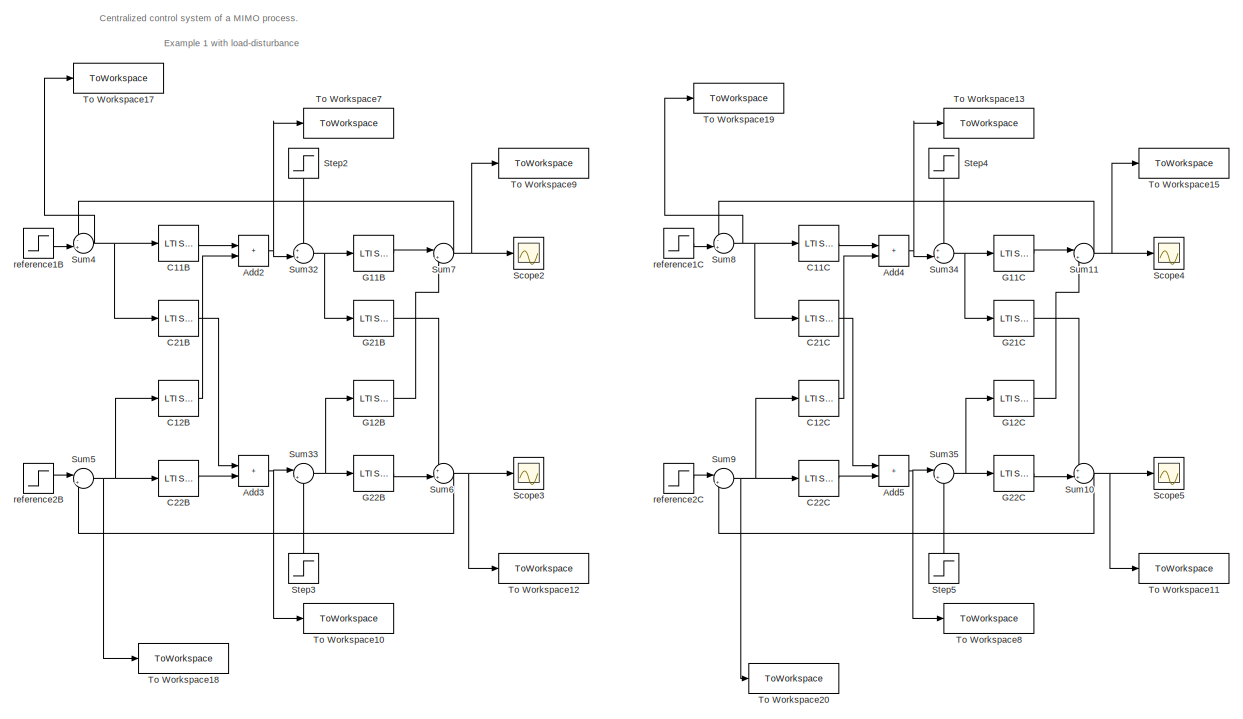
[diagram: root canvas - part 1/2, center side, full height]
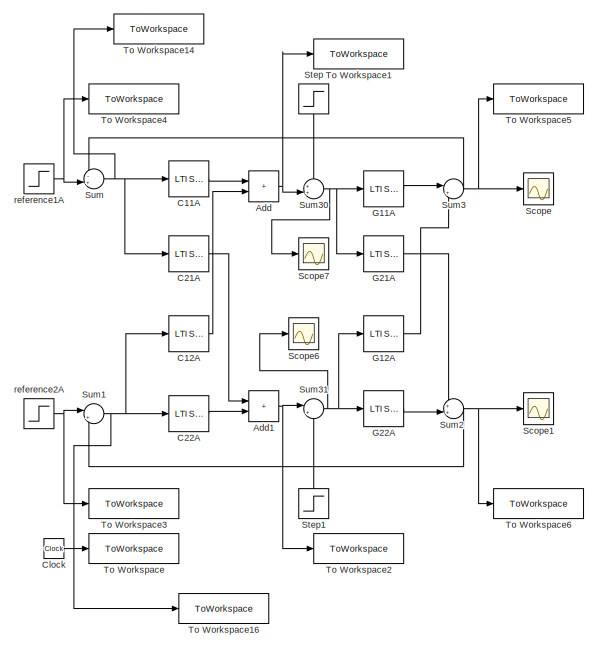
[diagram: root canvas - part 2/2, left side, full height]
MODEL slx_c72b5e23d8e6
KIND model
CONFIG AbsTol = auto
CONFIG EnableMultiTasking = off
CONFIG FixedStep = auto
CONFIG MaxStep = auto
CONFIG MinStep = auto
CONFIG RelTol = 1e-3
CONFIG SampleTimeConstraint = Unconstrained
CONFIG SolverName = VariableStepAuto
CONFIG StartTime = 0.0
CONFIG StopTime = Tsim
BLOCK [Sum] Add
  IconShape = rectangular
BLOCK [Sum] Add1
  IconShape = rectangular
BLOCK [Sum] Add2
  IconShape = rectangular
BLOCK [Sum] Add3
  IconShape = rectangular
BLOCK [Sum] Add4
  IconShape = rectangular
BLOCK [Sum] Add5
  IconShape = rectangular
BLOCK [Reference] C11A  REF=cstblocks/LTI System
  SourceBlock = cstblocks/LTI System
  SourceType = LTI Block
BLOCK [Reference] C11B  REF=cstblocks/LTI System
  SourceBlock = cstblocks/LTI System
  SourceType = LTI Block
BLOCK [Reference] C11C  REF=cstblocks/LTI System
  SourceBlock = cstblocks/LTI System
  SourceType = LTI Block
BLOCK [Reference] C12A  REF=cstblocks/LTI System
  SourceBlock = cstblocks/LTI System
  SourceType = LTI Block
BLOCK [Reference] C12B  REF=cstblocks/LTI System
  SourceBlock = cstblocks/LTI System
  SourceType = LTI Block
BLOCK [Reference] C12C  REF=cstblocks/LTI System
  SourceBlock = cstblocks/LTI System
  SourceType = LTI Block
BLOCK [Reference] C21A  REF=cstblocks/LTI System
  SourceBlock = cstblocks/LTI System
  SourceType = LTI Block
BLOCK [Reference] C21B  REF=cstblocks/LTI System
  SourceBlock = cstblocks/LTI System
  SourceType = LTI Block
BLOCK [Reference] C21C  REF=cstblocks/LTI System
  SourceBlock = cstblocks/LTI System
  SourceType = LTI Block
BLOCK [Reference] C22A  REF=cstblocks/LTI System
  SourceBlock = cstblocks/LTI System
  SourceType = LTI Block
BLOCK [Reference] C22B  REF=cstblocks/LTI System
  SourceBlock = cstblocks/LTI System
  SourceType = LTI Block
BLOCK [Reference] C22C  REF=cstblocks/LTI System
  SourceBlock = cstblocks/LTI System
  SourceType = LTI Block
BLOCK [Clock] Clock
BLOCK [Reference] G11A  REF=cstblocks/LTI System
  SourceBlock = cstblocks/LTI System
  SourceType = LTI Block
BLOCK [Reference] G11B  REF=cstblocks/LTI System
  SourceBlock = cstblocks/LTI System
  SourceType = LTI Block
BLOCK [Reference] G11C  REF=cstblocks/LTI System
  SourceBlock = cstblocks/LTI System
  SourceType = LTI Block
BLOCK [Reference] G12A  REF=cstblocks/LTI System
  SourceBlock = cstblocks/LTI System
  SourceType = LTI Block
BLOCK [Reference] G12B  REF=cstblocks/LTI System
  SourceBlock = cstblocks/LTI System
  SourceType = LTI Block
BLOCK [Reference] G12C  REF=cstblocks/LTI System
  SourceBlock = cstblocks/LTI System
  SourceType = LTI Block
BLOCK [Reference] G21A  REF=cstblocks/LTI System
  SourceBlock = cstblocks/LTI System
  SourceType = LTI Block
BLOCK [Reference] G21B  REF=cstblocks/LTI System
  SourceBlock = cstblocks/LTI System
  SourceType = LTI Block
BLOCK [Reference] G21C  REF=cstblocks/LTI System
  SourceBlock = cstblocks/LTI System
  SourceType = LTI Block
BLOCK [Reference] G22A  REF=cstblocks/LTI System
  SourceBlock = cstblocks/LTI System
  SourceType = LTI Block
BLOCK [Reference] G22B  REF=cstblocks/LTI System
  SourceBlock = cstblocks/LTI System
  SourceType = LTI Block
BLOCK [Reference] G22C  REF=cstblocks/LTI System
  SourceBlock = cstblocks/LTI System
  SourceType = LTI Block
BLOCK [Scope] Scope
  Floating = off
  NumInputPorts = 1
  ScopeSpecificationString = Simulink.scopes.TimeScopeBlockCfg('CurrentConfiguration', extmgr.ConfigurationSet(extmgr.Configuration('Core','General UI',true),extmgr.Configuration('Core','Source UI',true),extmgr.Configuration('Sources','WiredSimulink',true,'DataLoggingVariableName','ScopeData1'),extmgr.Configuration('Visuals','Time Domain',true,'SerializedDisplays',{struct('MinYLimReal','-2.86799','MaxYLimReal','4.50142','YLab...<+1394ch>
BLOCK [Scope] Scope1
  Floating = off
  NumInputPorts = 1
  ScopeSpecificationString = Simulink.scopes.TimeScopeBlockCfg('CurrentConfiguration', extmgr.ConfigurationSet(extmgr.Configuration('Core','General UI',true),extmgr.Configuration('Core','Source UI',true),extmgr.Configuration('Sources','WiredSimulink',true,'DataLoggingVariableName','ScopeData2'),extmgr.Configuration('Visuals','Time Domain',true,'SerializedDisplays',{struct('MinYLimReal','-0.30439','MaxYLimReal','2.73954','YLab...<+1394ch>
BLOCK [Scope] Scope2
  Floating = off
  NumInputPorts = 1
  ScopeSpecificationString = Simulink.scopes.TimeScopeBlockCfg('CurrentConfiguration', extmgr.ConfigurationSet(extmgr.Configuration('Core','General UI',true),extmgr.Configuration('Core','Source UI',true),extmgr.Configuration('Sources','WiredSimulink',true,'DataLoggingVariableName','ScopeData3'),extmgr.Configuration('Visuals','Time Domain',true,'SerializedDisplays',{struct('MinYLimReal','-0.15622','MaxYLimReal','1.40598','YLab...<+1396ch>
BLOCK [Scope] Scope3
  Floating = off
  NumInputPorts = 1
  ScopeSpecificationString = Simulink.scopes.TimeScopeBlockCfg('CurrentConfiguration', extmgr.ConfigurationSet(extmgr.Configuration('Core','General UI',true),extmgr.Configuration('Core','Source UI',true),extmgr.Configuration('Sources','WiredSimulink',true,'DataLoggingVariableName','ScopeData4'),extmgr.Configuration('Visuals','Time Domain',true),extmgr.Configuration('Tools','Plot Navigation',true),extmgr.Configuration('Tools',...<+40ch>
BLOCK [Scope] Scope4
  Floating = off
  NumInputPorts = 1
  ScopeSpecificationString = Simulink.scopes.TimeScopeBlockCfg('CurrentConfiguration', extmgr.ConfigurationSet(extmgr.Configuration('Core','General UI',true),extmgr.Configuration('Core','Source UI',true),extmgr.Configuration('Sources','WiredSimulink',true,'DataLoggingVariableName','ScopeData5'),extmgr.Configuration('Visuals','Time Domain',true,'SerializedDisplays',{struct('MinYLimReal','-0.20269','MaxYLimReal','1.8242','YLabe...<+1392ch>
BLOCK [Scope] Scope5
  Floating = off
  NumInputPorts = 1
  ScopeSpecificationString = Simulink.scopes.TimeScopeBlockCfg('CurrentConfiguration', extmgr.ConfigurationSet(extmgr.Configuration('Core','General UI',true),extmgr.Configuration('Core','Source UI',true),extmgr.Configuration('Sources','WiredSimulink',true,'DataLoggingVariableName','ScopeData6'),extmgr.Configuration('Visuals','Time Domain',true),extmgr.Configuration('Tools','Plot Navigation',true),extmgr.Configuration('Tools',...<+40ch>
BLOCK [Scope] Scope6
  Floating = off
  NumInputPorts = 1
  ScopeSpecificationString = Simulink.scopes.TimeScopeBlockCfg('CurrentConfiguration', extmgr.ConfigurationSet(extmgr.Configuration('Core','General UI',true),extmgr.Configuration('Core','Source UI',true),extmgr.Configuration('Sources','WiredSimulink',true,'DataLoggingVariableName','ScopeData7'),extmgr.Configuration('Visuals','Time Domain',true,'SerializedDisplays',{struct('MinYLimReal','-0.87654','MaxYLimReal','1.56855','YLab...<+1397ch>
BLOCK [Scope] Scope7
  Floating = off
  NumInputPorts = 1
  ScopeSpecificationString = Simulink.scopes.TimeScopeBlockCfg('CurrentConfiguration', extmgr.ConfigurationSet(extmgr.Configuration('Core','General UI',true),extmgr.Configuration('Core','Source UI',true),extmgr.Configuration('Sources','WiredSimulink',true),extmgr.Configuration('Visuals','Time Domain',true,'SerializedDisplays',{struct('MinYLimReal','-0.11581','MaxYLimReal','1.3055','YLabelReal','','MinYLimMag','0.00000','MaxYL...<+1352ch>
BLOCK [Step] Step
  After = finalDisturbance1Value
  Before = initialDisturbance1Value
  NameLocation = left
  SampleTime = Ts
  Time = Tref1
BLOCK [Step] Step1
  After = finalDisturbance2Value
  Before = initialDisturbance2Value
  NameLocation = right
  SampleTime = Ts
  Time = Tref2
BLOCK [Step] Step2
  After = finalDisturbance1Value
  Before = initialDisturbance1Value
  NameLocation = left
  SampleTime = Ts
  Time = Tref1
BLOCK [Step] Step3
  After = finalDisturbance2Value
  Before = initialDisturbance2Value
  NameLocation = right
  SampleTime = Ts
  Time = Tref2
BLOCK [Step] Step4
  After = finalDisturbance1Value
  Before = initialDisturbance1Value
  NameLocation = left
  SampleTime = Ts
  Time = Tref1
BLOCK [Step] Step5
  After = finalDisturbance2Value
  Before = initialDisturbance2Value
  NameLocation = right
  SampleTime = Ts
  Time = Tref2
BLOCK [Sum] Sum
  Inputs = -+|
BLOCK [Sum] Sum1
  Inputs = |+-
BLOCK [Sum] Sum10
  Inputs = ++|
BLOCK [Sum] Sum11
  Inputs = |++
BLOCK [Sum] Sum2
  Inputs = ++|
BLOCK [Sum] Sum3
  Inputs = |++
BLOCK [Sum] Sum30
  Inputs = ++|
BLOCK [Sum] Sum31
  Inputs = |++
BLOCK [Sum] Sum32
  Inputs = ++|
BLOCK [Sum] Sum33
  Inputs = |++
BLOCK [Sum] Sum34
  Inputs = ++|
BLOCK [Sum] Sum35
  Inputs = |++
BLOCK [Sum] Sum4
  Inputs = -+|
BLOCK [Sum] Sum5
  Inputs = |+-
BLOCK [Sum] Sum6
  Inputs = ++|
BLOCK [Sum] Sum7
  Inputs = |++
BLOCK [Sum] Sum8
  Inputs = -+|
BLOCK [Sum] Sum9
  Inputs = |+-
BLOCK [ToWorkspace] To Workspace
  FixptAsFi = on
  MaxDataPoints = inf
  SampleTime = Ts
  VariableName = cpi_time
BLOCK [ToWorkspace] To Workspace1
  FixptAsFi = on
  MaxDataPoints = inf
  SampleTime = Ts
  VariableName = cSignal1A
BLOCK [ToWorkspace] To Workspace10
  FixptAsFi = on
  MaxDataPoints = inf
  SampleTime = Ts
  VariableName = cSignal2B
BLOCK [ToWorkspace] To Workspace11
  FixptAsFi = on
  MaxDataPoints = inf
  SampleTime = Ts
  VariableName = y2C
BLOCK [ToWorkspace] To Workspace12
  FixptAsFi = on
  MaxDataPoints = inf
  SampleTime = Ts
  VariableName = y2B
BLOCK [ToWorkspace] To Workspace13
  FixptAsFi = on
  MaxDataPoints = inf
  SampleTime = Ts
  VariableName = cSignal1C
BLOCK [ToWorkspace] To Workspace14
  FixptAsFi = on
  MaxDataPoints = inf
  SampleTime = Ts
  VariableName = e1
BLOCK [ToWorkspace] To Workspace15
  FixptAsFi = on
  MaxDataPoints = inf
  SampleTime = Ts
  VariableName = y1C
BLOCK [ToWorkspace] To Workspace16
  FixptAsFi = on
  MaxDataPoints = inf
  SampleTime = Ts
  VariableName = e2
BLOCK [ToWorkspace] To Workspace17
  FixptAsFi = on
  MaxDataPoints = inf
  SampleTime = Ts
  VariableName = e3
BLOCK [ToWorkspace] To Workspace18
  FixptAsFi = on
  MaxDataPoints = inf
  SampleTime = Ts
  VariableName = e4
BLOCK [ToWorkspace] To Workspace19
  FixptAsFi = on
  MaxDataPoints = inf
  SampleTime = Ts
  VariableName = e5
BLOCK [ToWorkspace] To Workspace2
  FixptAsFi = on
  MaxDataPoints = inf
  SampleTime = Ts
  VariableName = cSignal2A
BLOCK [ToWorkspace] To Workspace20
  FixptAsFi = on
  MaxDataPoints = inf
  SampleTime = Ts
  VariableName = e6
BLOCK [ToWorkspace] To Workspace3
  FixptAsFi = on
  MaxDataPoints = inf
  SampleTime = Ts
  VariableName = u2
BLOCK [ToWorkspace] To Workspace4
  FixptAsFi = on
  MaxDataPoints = inf
  SampleTime = Ts
  VariableName = u1
BLOCK [ToWorkspace] To Workspace5
  FixptAsFi = on
  MaxDataPoints = inf
  SampleTime = -1
  VariableName = y1A
BLOCK [ToWorkspace] To Workspace6
  FixptAsFi = on
  MaxDataPoints = inf
  SampleTime = -1
  VariableName = y2A
BLOCK [ToWorkspace] To Workspace7
  FixptAsFi = on
  MaxDataPoints = inf
  SampleTime = Ts
  VariableName = cSignal1B
BLOCK [ToWorkspace] To Workspace8
  FixptAsFi = on
  MaxDataPoints = inf
  SampleTime = Ts
  VariableName = cSignal2C
BLOCK [ToWorkspace] To Workspace9
  FixptAsFi = on
  MaxDataPoints = inf
  SampleTime = Ts
  VariableName = y1B
BLOCK [Step] reference1A
  After = finalReference1Value
  Before = initialReference1Value
  SampleTime = Ts
  Time = Tref1
BLOCK [Step] reference1B
  After = finalReference1Value
  Before = initialReference1Value
  SampleTime = Ts
  Time = Tref1
BLOCK [Step] reference1C
  After = finalReference1Value
  Before = initialReference1Value
  SampleTime = Ts
  Time = Tref1
BLOCK [Step] reference2A
  After = finalReference2Value
  Before = initialReference2Value
  SampleTime = Ts
  Time = Tref2
BLOCK [Step] reference2B
  After = finalReference2Value
  Before = initialReference2Value
  SampleTime = Ts
  Time = Tref2
BLOCK [Step] reference2C
  After = finalReference2Value
  Before = initialReference2Value
  SampleTime = Ts
  Time = Tref2
ANNOTATION (root): Centralized control system of a MIMO process.
ANNOTATION (root): Example 1 with load-disturbance
NET Add1:1 -> Sum31:1, To Workspace2:1
NET Add2:1 -> Sum32:2, To Workspace7:1
NET Add3:1 -> Sum33:1, To Workspace10:1
NET Add4:1 -> Sum34:2, To Workspace13:1
NET Add5:1 -> Sum35:1, To Workspace8:1
NET Add:1 -> Sum30:2, To Workspace1:1
LINE C11A:1 -> Add:1
LINE C11B:1 -> Add2:1
LINE C11C:1 -> Add4:1
LINE C12A:1 -> Add:2
LINE C12B:1 -> Add2:2
LINE C12C:1 -> Add4:2
LINE C21A:1 -> Add1:1
LINE C21B:1 -> Add3:1
LINE C21C:1 -> Add5:1
LINE C22A:1 -> Add1:2
LINE C22B:1 -> Add3:2
LINE C22C:1 -> Add5:2
LINE Clock:1 -> To Workspace:1
LINE G11A:1 -> Sum3:1
LINE G11B:1 -> Sum7:1
LINE G11C:1 -> Sum11:1
LINE G12A:1 -> Sum3:2
LINE G12B:1 -> Sum7:2
LINE G12C:1 -> Sum11:2
LINE G21A:1 -> Sum2:1
LINE G21B:1 -> Sum6:1
LINE G21C:1 -> Sum10:1
LINE G22A:1 -> Sum2:2
LINE G22B:1 -> Sum6:2
LINE G22C:1 -> Sum10:2
LINE Step1:1 -> Sum31:2
LINE Step2:1 -> Sum32:1
LINE Step3:1 -> Sum33:2
LINE Step4:1 -> Sum34:1
LINE Step5:1 -> Sum35:2
LINE Step:1 -> Sum30:1
NET Sum10:1 -> Scope5:1, Sum9:2, To Workspace11:1
NET Sum11:1 -> Scope4:1, Sum8:1, To Workspace15:1
NET Sum1:1 -> C12A:1, C22A:1, To Workspace16:1
NET Sum2:1 -> Scope1:1, Sum1:2, To Workspace6:1
NET Sum30:1 -> G11A:1, G21A:1, Scope7:1
NET Sum31:1 -> G12A:1, G22A:1, Scope6:1
NET Sum32:1 -> G11B:1, G21B:1
NET Sum33:1 -> G12B:1, G22B:1
NET Sum34:1 -> G11C:1, G21C:1
NET Sum35:1 -> G12C:1, G22C:1
NET Sum3:1 -> Scope:1, Sum:1, To Workspace5:1
NET Sum4:1 -> C11B:1, C21B:1, To Workspace17:1
NET Sum5:1 -> C12B:1, C22B:1, To Workspace18:1
NET Sum6:1 -> Scope3:1, Sum5:2, To Workspace12:1
NET Sum7:1 -> Scope2:1, Sum4:1, To Workspace9:1
NET Sum8:1 -> C11C:1, C21C:1, To Workspace19:1
NET Sum9:1 -> C12C:1, C22C:1, To Workspace20:1
NET Sum:1 -> C11A:1, C21A:1, To Workspace14:1
NET reference1A:1 -> Sum:2, To Workspace4:1
LINE reference1B:1 -> Sum4:2
LINE reference1C:1 -> Sum8:2
NET reference2A:1 -> Sum1:1, To Workspace3:1
LINE reference2B:1 -> Sum5:1
LINE reference2C:1 -> Sum9:1
note: NET lines group one-source signal fan-out (src -> all destinations, sorted); 1:1 wires keep LINE
